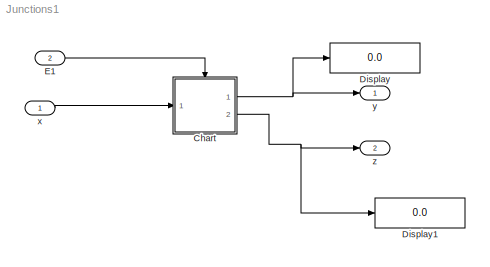
MODEL Junctions1
KIND model
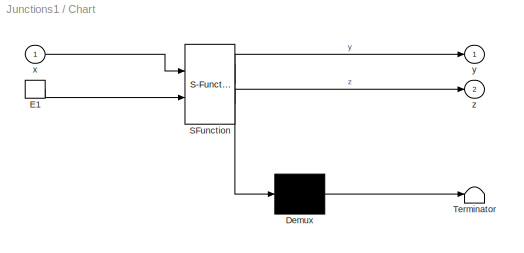
BLOCK [SubSystem] Chart
  ErrorFcn = Stateflow.Translate.translate
  PermitHierarchicalResolution = ExplicitOnly
  Ports = [1, 2, 0, 1]
  RequestExecContextInheritance = off
  SFBlockType = Chart
  SID = 1
  TreatAsAtomicUnit = on
  Variant = off
BLOCK [Demux] Chart/ Demux 
  Outputs = 1
  Ports = [1, 1]
  SID = 1::18
BLOCK [S-Function] Chart/ SFunction 
  EnableBusSupport = on
  FunctionName = sf_sfun
  PortCounts = [2 3]
  Ports = [2, 3]
  SFcnIsStateOwnerBlock = off
  SFunctionDeploymentMode = off
  SID = 1::17
  Tag = Stateflow S-Function Junctions1 1
BLOCK [Terminator] Chart/ Terminator 
  SID = 1::19
BLOCK [TriggerPort] Chart/E1
  Ports = [0, 1]
  SID = 1::2
  ShowOutputPort = on
  TriggerType = either
  VariantControl = (inherit)
BLOCK [Inport] Chart/x
  IconDisplay = Port number
  SID = 1::1
BLOCK [Outport] Chart/y
  IconDisplay = Port number
  SID = 1::6
BLOCK [Outport] Chart/z
  IconDisplay = Port number
  Port = 2
  SID = 1::7
BLOCK [Display] Display
  Decimation = 1
  Ports = [1]
  SID = 14
BLOCK [Display] Display1
  Decimation = 1
  Ports = [1]
  SID = 15
BLOCK [Inport] E1
  IconDisplay = Port number
  Port = 2
  SID = 17
BLOCK [Inport] x
  IconDisplay = Port number
  SID = 18
BLOCK [Outport] y
  IconDisplay = Port number
  SID = 9
BLOCK [Outport] z
  IconDisplay = Port number
  Port = 2
  SID = 10
LINE Chart/ Demux :1 -> Chart/ Terminator :1
LINE Chart/ SFunction :1 -> Chart/ Demux :1
LINE Chart/ SFunction :2 -> Chart/y:1
LINE Chart/ SFunction :3 -> Chart/z:1
LINE Chart/E1:1 -> Chart/ SFunction :2
LINE Chart/x:1 -> Chart/ SFunction :1
NET Chart:1 -> Display:1, y:1
NET Chart:2 -> Display1:1, z:1
LINE E1:1 -> Chart:trigger
LINE x:1 -> Chart:1
note: NET lines group one-source signal fan-out (src -> all destinations, sorted); 1:1 wires keep LINE
CHART Chart states=3 transitions=6
  STATE_LABEL 'A\\nex : y=y.*2'
  STATE_LABEL 'C'
  STATE_LABEL 'B'
